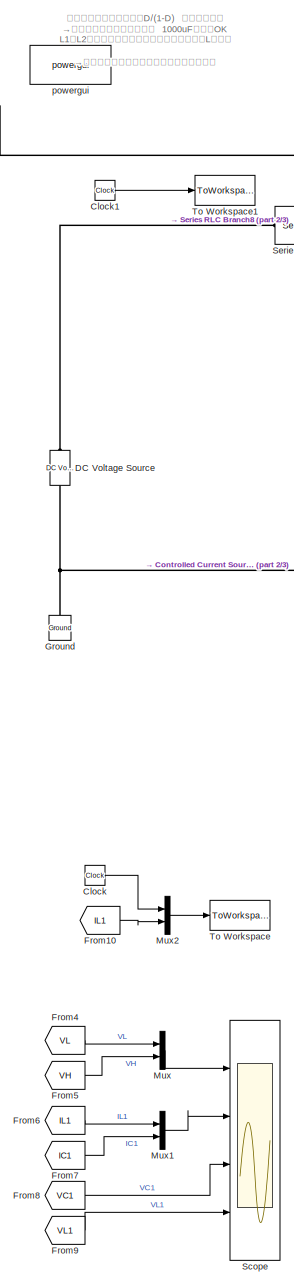
[diagram: root canvas - part 1/3, left side, full height]
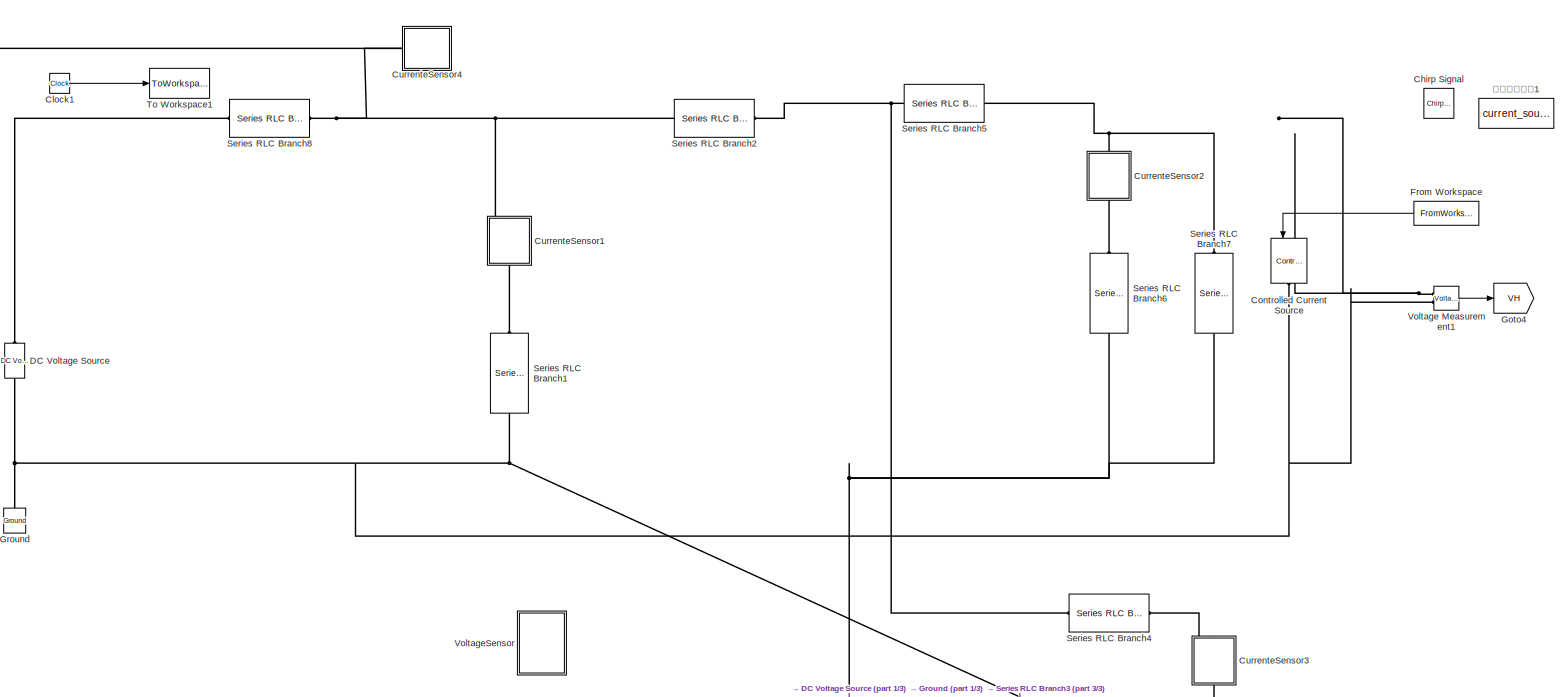
[diagram: root canvas - part 2/3, full width, middle band]
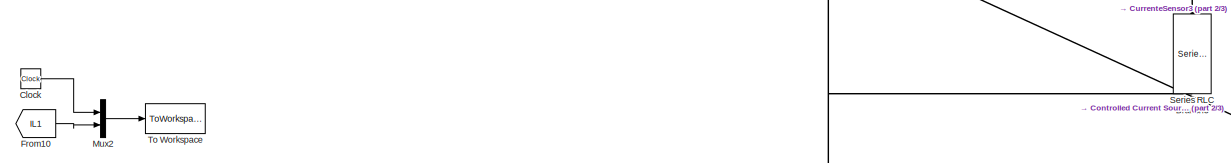
[diagram: root canvas - part 3/3, full width, bottom band]
MODEL slx_2714da7aa1f5
KIND model
CONFIG AbsTol = 1e-3
CONFIG EnableMultiTasking = on
CONFIG FixedStep = auto
CONFIG MaxStep = auto
CONFIG MinStep = auto
CONFIG RelTol = 1e-3
CONFIG SampleTimeConstraint = Unconstrained
CONFIG Solver = ode23t
CONFIG SolverName = ode23t
CONFIG StartTime = 0.0
CONFIG StopTime = 0.6
BLOCK [Reference] Chirp Signal  REF=simulink/Sources/Chirp Signal
  Commented = on
  Ports = [0, 1]
  SourceBlock = simulink/Sources/Chirp Signal
  SourceProductBaseCode = SL
  SourceProductName = Simulink
  SourceType = chirp
BLOCK [Clock] Clock
BLOCK [Clock] Clock1
BLOCK [Reference] Controlled Current Source  REF=powerlib/Electrical
Sources/Controlled Current Source
  Ports = [1, 0, 0, 0, 0, 1, 1]
  SourceBlock = powerlib/Electrical\nSources/Controlled Current Source
  SourceProductBaseCode = PS
  SourceProductName = Simscape Power Systems
  SourceType = Controlled Current Source
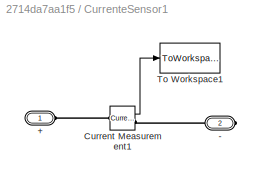
BLOCK [SubSystem] CurrenteSensor1
  Ports = [0, 0, 0, 0, 0, 1, 1]
  RequestExecContextInheritance = off
BLOCK [PMIOPort] CurrenteSensor1/+
  Side = Left
BLOCK [PMIOPort] CurrenteSensor1/-
  Port = 2
  Side = Right
BLOCK [Reference] CurrenteSensor1/Current Measurement1  REF=powerlib/Measurements/Current Measurement
  Ports = [0, 1, 0, 0, 0, 1, 1]
  SourceBlock = powerlib/Measurements/Current Measurement
  SourceProductBaseCode = PS
  SourceProductName = Simscape Power Systems
  SourceType = Current Measurement
  UserDataPersistent = on
BLOCK [ToWorkspace] CurrenteSensor1/To Workspace1
  FixptAsFi = on
  MaxDataPoints = inf
  Ports = [1]
  SampleTime = sample_time
  Save2DSignal = 3-D array (concatenate along third dimension)
  VariableName = IC1
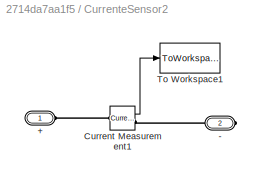
BLOCK [SubSystem] CurrenteSensor2
  Ports = [0, 0, 0, 0, 0, 1, 1]
  RequestExecContextInheritance = off
BLOCK [PMIOPort] CurrenteSensor2/+
  Side = Left
BLOCK [PMIOPort] CurrenteSensor2/-
  Port = 2
  Side = Right
BLOCK [Reference] CurrenteSensor2/Current Measurement1  REF=powerlib/Measurements/Current Measurement
  Ports = [0, 1, 0, 0, 0, 1, 1]
  SourceBlock = powerlib/Measurements/Current Measurement
  SourceProductBaseCode = PS
  SourceProductName = Simscape Power Systems
  SourceType = Current Measurement
  UserDataPersistent = on
BLOCK [ToWorkspace] CurrenteSensor2/To Workspace1
  FixptAsFi = on
  MaxDataPoints = inf
  Ports = [1]
  SampleTime = sample_time
  Save2DSignal = 3-D array (concatenate along third dimension)
  VariableName = IC2
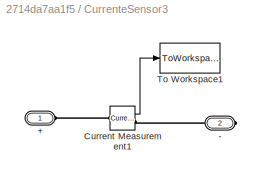
BLOCK [SubSystem] CurrenteSensor3
  Ports = [0, 0, 0, 0, 0, 1, 1]
  RequestExecContextInheritance = off
BLOCK [PMIOPort] CurrenteSensor3/+
  Side = Left
BLOCK [PMIOPort] CurrenteSensor3/-
  Port = 2
  Side = Right
BLOCK [Reference] CurrenteSensor3/Current Measurement1  REF=powerlib/Measurements/Current Measurement
  Ports = [0, 1, 0, 0, 0, 1, 1]
  SourceBlock = powerlib/Measurements/Current Measurement
  SourceProductBaseCode = PS
  SourceProductName = Simscape Power Systems
  SourceType = Current Measurement
  UserDataPersistent = on
BLOCK [ToWorkspace] CurrenteSensor3/To Workspace1
  FixptAsFi = on
  MaxDataPoints = inf
  Ports = [1]
  SampleTime = sample_time
  Save2DSignal = 3-D array (concatenate along third dimension)
  VariableName = IC3
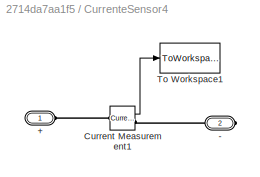
BLOCK [SubSystem] CurrenteSensor4
  Ports = [0, 0, 0, 0, 0, 1, 1]
  RequestExecContextInheritance = off
BLOCK [PMIOPort] CurrenteSensor4/+
  Side = Left
BLOCK [PMIOPort] CurrenteSensor4/-
  Port = 2
  Side = Right
BLOCK [Reference] CurrenteSensor4/Current Measurement1  REF=powerlib/Measurements/Current Measurement
  Ports = [0, 1, 0, 0, 0, 1, 1]
  SourceBlock = powerlib/Measurements/Current Measurement
  SourceProductBaseCode = PS
  SourceProductName = Simscape Power Systems
  SourceType = Current Measurement
  UserDataPersistent = on
BLOCK [ToWorkspace] CurrenteSensor4/To Workspace1
  FixptAsFi = on
  MaxDataPoints = inf
  Ports = [1]
  SampleTime = sample_time
  Save2DSignal = 3-D array (concatenate along third dimension)
  VariableName = Iin
BLOCK [Reference] DC Voltage Source  REF=powerlib/Electrical
Sources/DC Voltage Source
  AttributesFormatString = DC = %<Amplitude> V
  Commented = on
  Ports = [0, 0, 0, 0, 0, 1, 1]
  SourceBlock = powerlib/Electrical\nSources/DC Voltage Source
  SourceProductBaseCode = PS
  SourceProductName = Simscape Power Systems
  SourceType = DC Voltage Source
BLOCK [FromWorkspace] From Workspace
  SampleTime = sample_time
  VariableName = var_chirp
  ZeroCross = on
BLOCK [From] From10
  GotoTag = IL1
BLOCK [From] From4
  GotoTag = VL
BLOCK [From] From5
  GotoTag = VH
BLOCK [From] From6
  GotoTag = IL1
BLOCK [From] From7
  GotoTag = IC1
BLOCK [From] From8
  GotoTag = VC1
BLOCK [From] From9
  GotoTag = VL1
BLOCK [Goto] Goto4
  GotoTag = VH
BLOCK [Reference] Ground  REF=powerlib/Elements/Ground
  Ports = [0, 0, 0, 0, 0, 1]
  SourceBlock = powerlib/Elements/Ground
  SourceProductBaseCode = PS
  SourceProductName = Simscape Power Systems
  SourceType = Ground
BLOCK [Mux] Mux
  DisplayOption = bar
  Inputs = 2
  Ports = [2, 1]
BLOCK [Mux] Mux1
  DisplayOption = bar
  Inputs = 2
  Ports = [2, 1]
BLOCK [Mux] Mux2
  DisplayOption = bar
  Inputs = 2
  Ports = [2, 1]
BLOCK [Scope] Scope
  Floating = off
  NumInputPorts = 4
  Ports = [4]
  ScopeSpecificationString = Simulink.scopes.TimeScopeBlockCfg('CurrentConfiguration', extmgr.ConfigurationSet(extmgr.Configuration('Core','General UI',true),extmgr.Configuration('Core','Source UI',true),extmgr.Configuration('Sources','WiredSimulink',true,'DataLoggingLimitDataPoints',true,'DataLoggingMaxPoints','10000'),extmgr.Configuration('Visuals','Time Domain',true,'SerializedDisplays',{struct('MinYLimReal','43.83614','Ma...<+3463ch>
BLOCK [Reference] Series RLC Branch1  REF=powerlib/Elements/Series RLC Branch
  AttributesFormatString = C= %<Capacitance>  F
  Ports = [0, 0, 0, 0, 0, 1, 1]
  SourceBlock = powerlib/Elements/Series RLC Branch
  SourceProductBaseCode = PS
  SourceProductName = Simscape Power Systems
  SourceType = Series RLC Branch
BLOCK [Reference] Series RLC Branch2  REF=powerlib/Elements/Series RLC Branch
  AttributesFormatString = L=%<Inductance> H\nR=%<Resistance> Ohm
  Ports = [0, 0, 0, 0, 0, 1, 1]
  SourceBlock = powerlib/Elements/Series RLC Branch
  SourceProductBaseCode = PS
  SourceProductName = Simscape Power Systems
  SourceType = Series RLC Branch
BLOCK [Reference] Series RLC Branch3  REF=powerlib/Elements/Series RLC Branch
  AttributesFormatString = L=%<Inductance> H\nR=%<Resistance> Ohm
  Ports = [0, 0, 0, 0, 0, 1, 1]
  SourceBlock = powerlib/Elements/Series RLC Branch
  SourceProductBaseCode = PS
  SourceProductName = Simscape Power Systems
  SourceType = Series RLC Branch
BLOCK [Reference] Series RLC Branch4  REF=powerlib/Elements/Series RLC Branch
  AttributesFormatString = L=%<Inductance> H\nR=%<Resistance> Ohm
  Ports = [0, 0, 0, 0, 0, 1, 1]
  SourceBlock = powerlib/Elements/Series RLC Branch
  SourceProductBaseCode = PS
  SourceProductName = Simscape Power Systems
  SourceType = Series RLC Branch
BLOCK [Reference] Series RLC Branch5  REF=powerlib/Elements/Series RLC Branch
  AttributesFormatString = L=%<Inductance> H\nR=%<Resistance> Ohm
  Ports = [0, 0, 0, 0, 0, 1, 1]
  SourceBlock = powerlib/Elements/Series RLC Branch
  SourceProductBaseCode = PS
  SourceProductName = Simscape Power Systems
  SourceType = Series RLC Branch
BLOCK [Reference] Series RLC Branch6  REF=powerlib/Elements/Series RLC Branch
  AttributesFormatString = L=%<Inductance> H\nR=%<Resistance> Ohm
  Ports = [0, 0, 0, 0, 0, 1, 1]
  SourceBlock = powerlib/Elements/Series RLC Branch
  SourceProductBaseCode = PS
  SourceProductName = Simscape Power Systems
  SourceType = Series RLC Branch
BLOCK [Reference] Series RLC Branch7  REF=powerlib/Elements/Series RLC Branch
  AttributesFormatString = R=%<Resistance> Ohm
  Ports = [0, 0, 0, 0, 0, 1, 1]
  SourceBlock = powerlib/Elements/Series RLC Branch
  SourceProductBaseCode = PS
  SourceProductName = Simscape Power Systems
  SourceType = Series RLC Branch
BLOCK [Reference] Series RLC Branch8  REF=powerlib/Elements/Series RLC Branch
  AttributesFormatString = R=%<Resistance> Ohm
  Ports = [0, 0, 0, 0, 0, 1, 1]
  SourceBlock = powerlib/Elements/Series RLC Branch
  SourceProductBaseCode = PS
  SourceProductName = Simscape Power Systems
  SourceType = Series RLC Branch
BLOCK [ToWorkspace] To Workspace
  FixptAsFi = on
  MaxDataPoints = inf
  Ports = [1]
  SampleTime = sample_time
  Save2DSignal = 3-D array (concatenate along third dimension)
  VariableName = Output
BLOCK [ToWorkspace] To Workspace1
  FixptAsFi = on
  MaxDataPoints = inf
  Ports = [1]
  SampleTime = sample_time
  Save2DSignal = 3-D array (concatenate along third dimension)
  VariableName = Time
BLOCK [Reference] Voltage Measurement1  REF=powerlib/Measurements/Voltage Measurement
  Ports = [0, 1, 0, 0, 0, 2]
  SourceBlock = powerlib/Measurements/Voltage Measurement
  SourceProductBaseCode = PS
  SourceProductName = Simscape Power Systems
  SourceType = Voltage Measurement
  UserDataPersistent = on
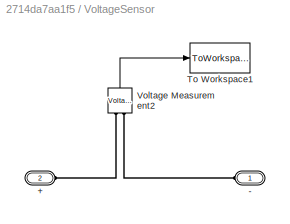
BLOCK [SubSystem] VoltageSensor
  Commented = on
  Ports = [0, 0, 0, 0, 0, 2]
  RequestExecContextInheritance = off
BLOCK [PMIOPort] VoltageSensor/+
  Port = 2
  Side = Left
BLOCK [PMIOPort] VoltageSensor/-
  Side = Left
BLOCK [ToWorkspace] VoltageSensor/To Workspace1
  FixptAsFi = on
  MaxDataPoints = inf
  Ports = [1]
  SampleTime = SampleTime
  Save2DSignal = 3-D array (concatenate along third dimension)
  VariableName = Val
BLOCK [Reference] VoltageSensor/Voltage Measurement2  REF=powerlib/Measurements/Voltage Measurement
  Ports = [0, 1, 0, 0, 0, 2]
  SourceBlock = powerlib/Measurements/Voltage Measurement
  SourceProductBaseCode = PS
  SourceProductName = Simscape Power Systems
  SourceType = Voltage Measurement
  UserDataPersistent = on
BLOCK [Reference] powergui  REF=powerlib/powergui
  Ports = []
  Priority = 1
  SourceBlock = powerlib/powergui
  SourceProductBaseCode = PS
  SourceProductName = Simscape Power Systems
  SourceType = PSB option menu block
BLOCK [Constant] 電流源の司令1
  Commented = on
  Value = current_source
ANNOTATION (root): やはり結合させないと、D/(1-D) にならない？ →フィルタコンが小さすぎた 1000uFにしてOK L1もL2も同じくらい触れるので、同サイズのLが必要 →体格はチョッパ型の２倍いりそうですね。 Duty 0.8 とか 0.2 で自己発振
LINE Clock1:1 -> To Workspace1:1
LINE Clock:1 -> Mux2:1
LINE CurrenteSensor1/Current Measurement1:1 -> CurrenteSensor1/To Workspace1:1
LINE CurrenteSensor2/Current Measurement1:1 -> CurrenteSensor2/To Workspace1:1
LINE CurrenteSensor3/Current Measurement1:1 -> CurrenteSensor3/To Workspace1:1
LINE CurrenteSensor4/Current Measurement1:1 -> CurrenteSensor4/To Workspace1:1
LINE From Workspace:1 -> Controlled Current Source:1
LINE From10:1 -> Mux2:2
LINE From4:1 -> Mux:1
LINE From5:1 -> Mux:2
LINE From6:1 -> Mux1:1
LINE From7:1 -> Mux1:2
LINE From8:1 -> Scope:3
LINE From9:1 -> Scope:4
LINE Mux1:1 -> Scope:2
LINE Mux2:1 -> To Workspace:1
LINE Mux:1 -> Scope:1
LINE Voltage Measurement1:1 -> Goto4:1
LINE VoltageSensor/Voltage Measurement2:1 -> VoltageSensor/To Workspace1:1
PNET net1: Controlled Current Source:LConn1 -- CurrenteSensor4:RConn1 -- Voltage Measurement1:LConn1
PNET net2: Controlled Current Source:RConn1 -- DC Voltage Source:LConn1 -- Ground:LConn1 -- Series RLC Branch1:RConn1 -- Series RLC Branch3:RConn1 -- Series RLC Branch6:RConn1 -- Series RLC Branch7:RConn1 -- Voltage Measurement1:LConn2
PLINE CurrenteSensor1/+:RConn1 -- CurrenteSensor1/Current Measurement1:LConn1
PLINE CurrenteSensor1/-:RConn1 -- CurrenteSensor1/Current Measurement1:RConn1
PNET net3: CurrenteSensor1:LConn1 -- CurrenteSensor4:LConn1 -- Series RLC Branch2:LConn1 -- Series RLC Branch8:RConn1
PLINE CurrenteSensor1:RConn1 -- Series RLC Branch1:LConn1
PLINE CurrenteSensor2/+:RConn1 -- CurrenteSensor2/Current Measurement1:LConn1
PLINE CurrenteSensor2/-:RConn1 -- CurrenteSensor2/Current Measurement1:RConn1
PNET net4: CurrenteSensor2:LConn1 -- Series RLC Branch5:RConn1 -- Series RLC Branch7:LConn1
PLINE CurrenteSensor2:RConn1 -- Series RLC Branch6:LConn1
PLINE CurrenteSensor3/+:RConn1 -- CurrenteSensor3/Current Measurement1:LConn1
PLINE CurrenteSensor3/-:RConn1 -- CurrenteSensor3/Current Measurement1:RConn1
PLINE CurrenteSensor3:LConn1 -- Series RLC Branch4:RConn1
PLINE CurrenteSensor3:RConn1 -- Series RLC Branch3:LConn1
PLINE CurrenteSensor4/+:RConn1 -- CurrenteSensor4/Current Measurement1:LConn1
PLINE CurrenteSensor4/-:RConn1 -- CurrenteSensor4/Current Measurement1:RConn1
PLINE DC Voltage Source:RConn1 -- Series RLC Branch8:LConn1
PNET net5: Series RLC Branch2:RConn1 -- Series RLC Branch4:LConn1 -- Series RLC Branch5:LConn1
PLINE VoltageSensor/+:RConn1 -- VoltageSensor/Voltage Measurement2:LConn1
PLINE VoltageSensor/-:RConn1 -- VoltageSensor/Voltage Measurement2:LConn2
note: PNET lines group multi-terminal physical nets as a canonical sorted terminal list (undirected conserving connections); 2-terminal nets keep the pairwise PLINE form
